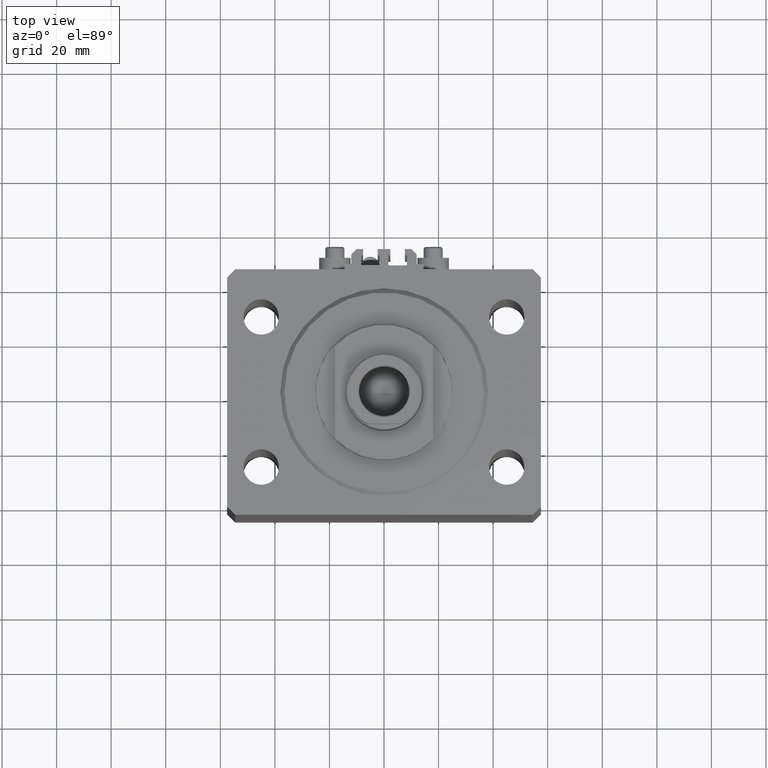
[diagram: clean part render]
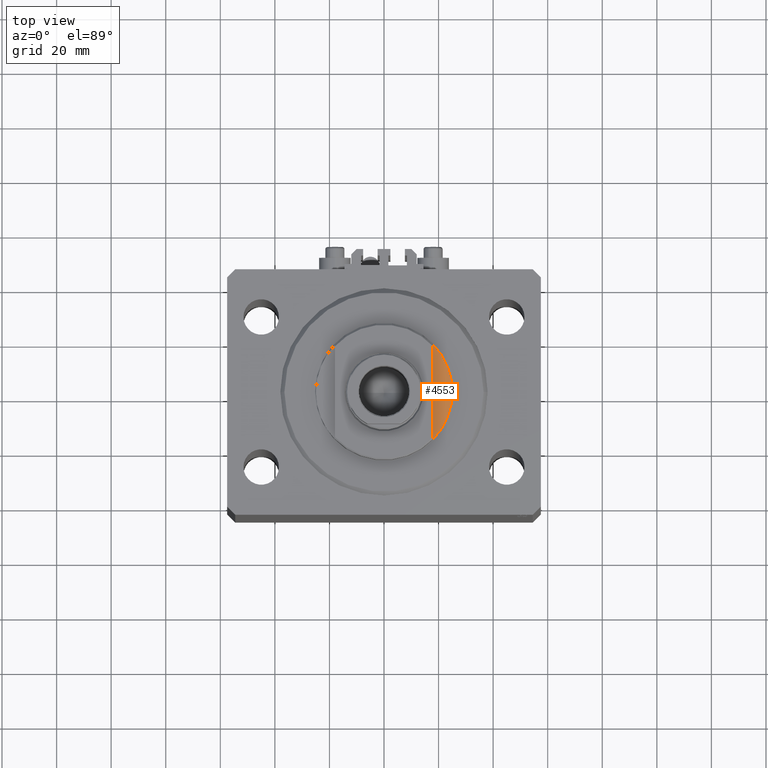
[diagram: same view with one face highlighted and labeled with its STEP entity id]
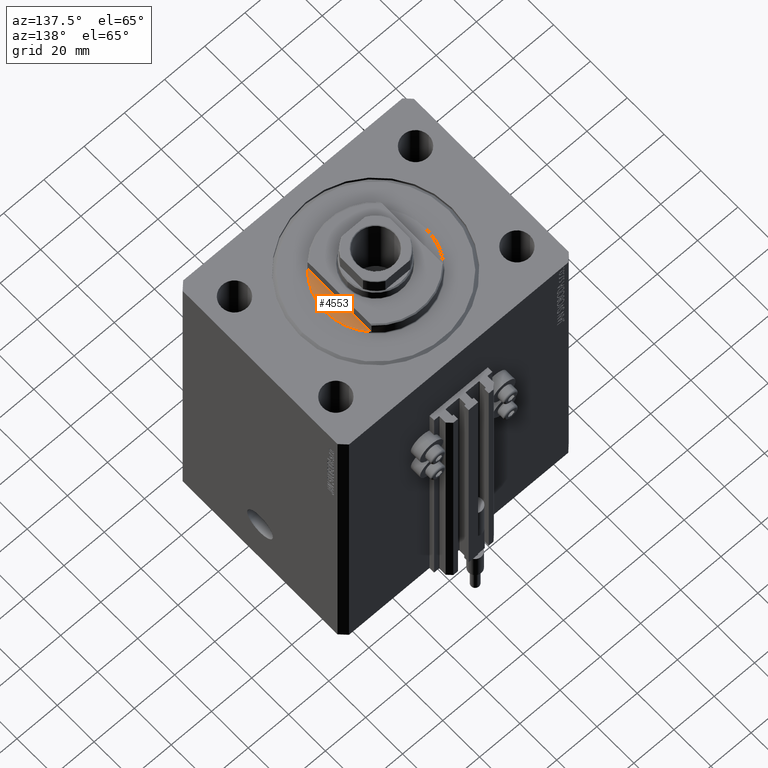
[diagram: same view with one face highlighted and labeled with its STEP entity id]
A machine part, top view. The second image highlights one B-rep face of the part: STEP entity #4553.
A second angle (auxiliary view) of the same face is appended — the face is thin or edge-on in the first view.
In plain terms, the highlighted planar face has unit normal (0, 0, 1).
Its self-contained STEP definition (entity closure, byte-faithful):
#495 = PLANE ( 'NONE',  #9276 ) ;
#1449 = EDGE_CURVE ( 'NONE', #13831, #19511, #44969, .T. ) ;
#4553 = ADVANCED_FACE ( 'NONE', ( #11887 ), #495, .T. ) ;
#7847 = CARTESIAN_POINT ( 'NONE',  ( -25.00000000000000000, 3.061616997868383043E-15, -1.000000000000000000 ) ) ;
#9276 = AXIS2_PLACEMENT_3D ( 'NONE', #22137, #45029, #11658 ) ;
#11658 = DIRECTION ( 'NONE',  ( -1.000000000000000000, 0.000000000000000000, -0.000000000000000000 ) ) ;
#11761 = CARTESIAN_POINT ( 'NONE',  ( 0.000000000000000000, 0.000000000000000000, -1.000000000000000000 ) ) ;
#11887 = FACE_OUTER_BOUND ( 'NONE', #45248, .T. ) ;
#13831 = VERTEX_POINT ( 'NONE', #37297 ) ;
#14063 = DIRECTION ( 'NONE',  ( -0.000000000000000000, -1.000000000000000000, -0.000000000000000000 ) ) ;
#18687 = LINE ( 'NONE', #21378, #45355 ) ;
#19511 = VERTEX_POINT ( 'NONE', #7847 ) ;
#20530 = CIRCLE ( 'NONE', #42334, 25.00000000000000000 ) ;
#20732 = ORIENTED_EDGE ( 'NONE', *, *, #28618, .T. ) ;
#21378 = CARTESIAN_POINT ( 'NONE',  ( -18.00000000000000000, -41.24318125460256113, -1.000000000000000000 ) ) ;
#22137 = CARTESIAN_POINT ( 'NONE',  ( 0.000000000000000000, 0.000000000000000000, -1.000000000000000000 ) ) ;
#23209 = DIRECTION ( 'NONE',  ( 0.000000000000000000, 0.000000000000000000, -1.000000000000000000 ) ) ;
#24076 = ORIENTED_EDGE ( 'NONE', *, *, #27205, .T. ) ;
#25276 = CARTESIAN_POINT ( 'NONE',  ( -18.00000000000000000, 17.34935157289747920, -1.000000000000000000 ) ) ;
#25554 = AXIS2_PLACEMENT_3D ( 'NONE', #47448, #43561, #42840 ) ;
#27205 = EDGE_CURVE ( 'NONE', #27231, #13831, #18687, .T. ) ;
#27231 = VERTEX_POINT ( 'NONE', #25276 ) ;
#28618 = EDGE_CURVE ( 'NONE', #19511, #27231, #20530, .T. ) ;
#37297 = CARTESIAN_POINT ( 'NONE',  ( -18.00000000000000000, -17.34935157289747920, -1.000000000000000000 ) ) ;
#37827 = DIRECTION ( 'NONE',  ( -1.000000000000000000, 0.000000000000000000, 0.000000000000000000 ) ) ;
#42334 = AXIS2_PLACEMENT_3D ( 'NONE', #11761, #23209, #37827 ) ;
#42840 = DIRECTION ( 'NONE',  ( -1.000000000000000000, 0.000000000000000000, 0.000000000000000000 ) ) ;
#43561 = DIRECTION ( 'NONE',  ( 0.000000000000000000, 0.000000000000000000, -1.000000000000000000 ) ) ;
#44969 = CIRCLE ( 'NONE', #25554, 25.00000000000000000 ) ;
#45029 = DIRECTION ( 'NONE',  ( 0.000000000000000000, 0.000000000000000000, -1.000000000000000000 ) ) ;
#45248 = EDGE_LOOP ( 'NONE', ( #47168, #20732, #24076 ) ) ;
#45355 = VECTOR ( 'NONE', #14063, 1000.000000000000000 ) ;
#47168 = ORIENTED_EDGE ( 'NONE', *, *, #1449, .T. ) ;
#47448 = CARTESIAN_POINT ( 'NONE',  ( 0.000000000000000000, 0.000000000000000000, -1.000000000000000000 ) ) ;